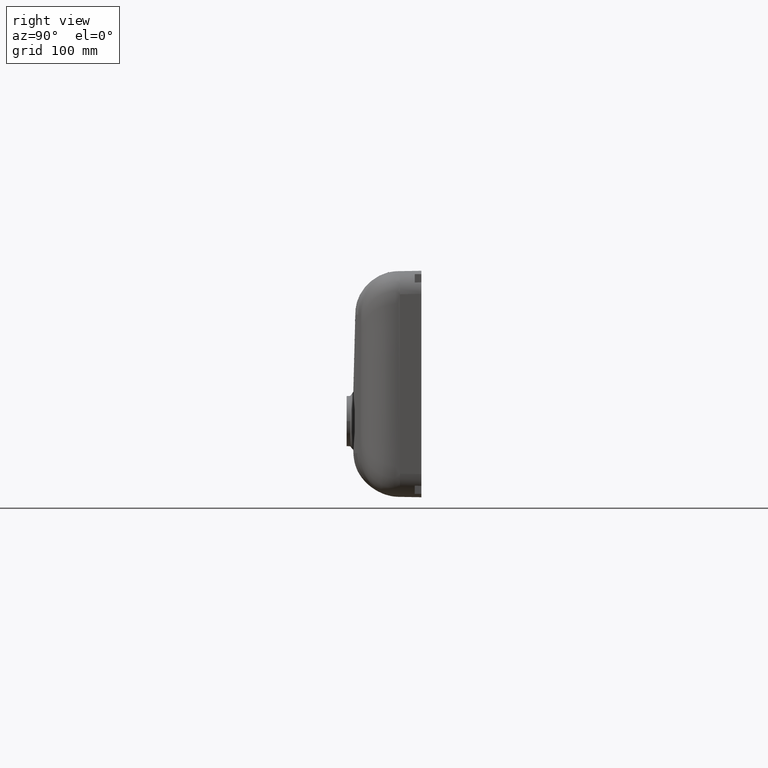
[diagram: clean part render]
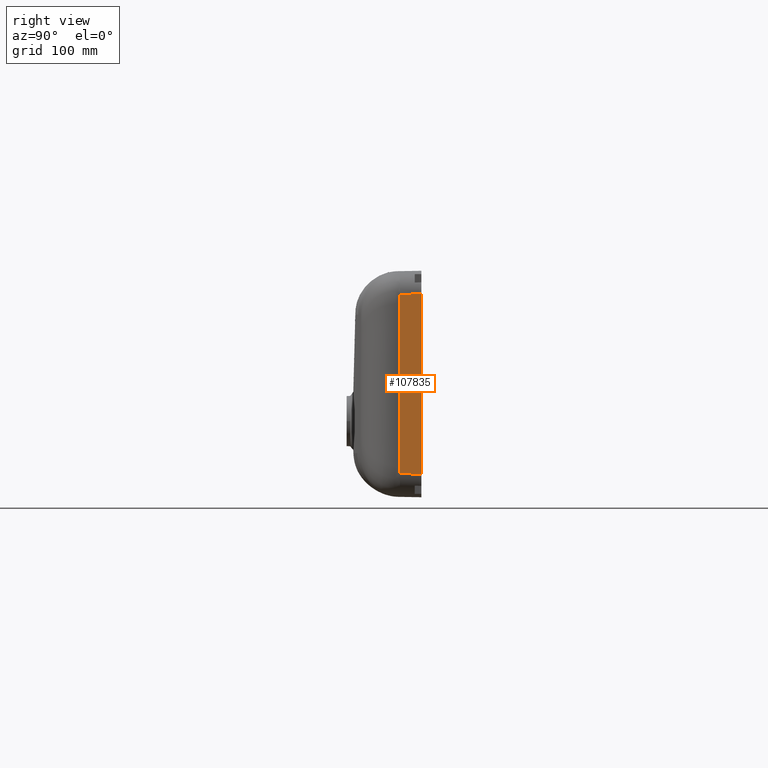
[diagram: same view with one face highlighted and labeled with its STEP entity id]
A machine part, right view. The second image highlights one B-rep face of the part: STEP entity #107835.
In plain terms, the highlighted planar face has unit normal (-0.9998, 0.0175, 0).
Its self-contained STEP definition (entity closure, byte-faithful):
#5448 = CARTESIAN_POINT ( 'NONE',  ( 1121.412078725274300, 80.73716222651927400, 157.7640204475701800 ) ) ;
#6230 = CARTESIAN_POINT ( 'NONE',  ( 1121.388565632289800, 80.73807119954472000, 190.0269091909690900 ) ) ;
#7011 = CARTESIAN_POINT ( 'NONE',  ( 1121.386718164625300, 80.73821625929862500, 230.4616566219234000 ) ) ;
#7800 = CARTESIAN_POINT ( 'NONE',  ( 1121.386764381054300, 80.73822223803829000, 265.3671292608127600 ) ) ;
#8594 = CARTESIAN_POINT ( 'NONE',  ( 1121.386756315348100, 80.73822460097979100, 325.0453660059885700 ) ) ;
#9375 = CARTESIAN_POINT ( 'NONE',  ( 1121.386890582942200, 80.73820402464315300, 360.4669816321612600 ) ) ;
#10158 = CARTESIAN_POINT ( 'NONE',  ( 1121.387137755654100, 80.73825935120463300, 395.6248617325097100 ) ) ;
#18772 = FACE_OUTER_BOUND ( 'NONE', #75873, .T. ) ;
#23118 = ORIENTED_EDGE ( 'NONE', *, *, #121031, .F. ) ;
#23738 = CARTESIAN_POINT ( 'NONE',  ( 1121.394222652712000, 80.73770692843602600, 163.4259520505943600 ) ) ;
#24515 = CARTESIAN_POINT ( 'NONE',  ( 1121.387002759732500, 80.73821075310735300, 195.9376239802663000 ) ) ;
#25291 = CARTESIAN_POINT ( 'NONE',  ( 1121.386630111464000, 80.73822729969245400, 236.7759424387272400 ) ) ;
#26079 = CARTESIAN_POINT ( 'NONE',  ( 1121.386766144521700, 80.73821161037624000, 275.9484267208014200 ) ) ;
#26872 = CARTESIAN_POINT ( 'NONE',  ( 1121.386763623771200, 80.73822562063674000, 326.6759253375058700 ) ) ;
#27653 = CARTESIAN_POINT ( 'NONE',  ( 1121.386981304610300, 80.73819708665000400, 366.3028589119812800 ) ) ;
#28435 = CARTESIAN_POINT ( 'NONE',  ( 1121.381340735097200, 80.73876413069980600, 401.2856158043961700 ) ) ;
#30274 = CARTESIAN_POINT ( 'NONE',  ( 1121.574498678530100, 91.49214260229383900, 150.4201706519064300 ) ) ;
#35734 = DIRECTION ( 'NONE',  ( -0.9998476951563912700, 0.01745240643728312000, 0.0000000000000000000 ) ) ;
#41976 = CARTESIAN_POINT ( 'NONE',  ( 1121.385064912444200, 80.73818891853009900, 166.7359287757715800 ) ) ;
#42761 = CARTESIAN_POINT ( 'NONE',  ( 1121.386428428525500, 80.73824253009800600, 205.5698241950958000 ) ) ;
#43544 = CARTESIAN_POINT ( 'NONE',  ( 1121.386665500806200, 80.73820881988371000, 242.1199159476229900 ) ) ;
#44042 = VECTOR ( 'NONE', #153985, 1000.000000000000000 ) ;
#44330 = CARTESIAN_POINT ( 'NONE',  ( 1121.386793015832600, 80.73820174954754200, 289.9883724484962500 ) ) ;
#45118 = CARTESIAN_POINT ( 'NONE',  ( 1121.386793078081800, 80.73822082742555000, 331.3315370545555500 ) ) ;
#45277 = CARTESIAN_POINT ( 'NONE',  ( 1121.949919725873800, 113.0000000000000000, 0.0000000000000000000 ) ) ;
#45896 = CARTESIAN_POINT ( 'NONE',  ( 1121.386721546064800, 80.73822721418342500, 372.1025400201373800 ) ) ;
#46673 = CARTESIAN_POINT ( 'NONE',  ( 1121.395675867761200, 80.73781552675423300, 411.5176311033802100 ) ) ;
#47670 = VERTEX_POINT ( 'NONE', #196051 ) ;
#50427 = VERTEX_POINT ( 'NONE', #129225 ) ;
#52429 = CARTESIAN_POINT ( 'NONE',  ( 1121.949919725874000, 113.0000000000000000, 421.9552503954783400 ) ) ;
#56088 = ORIENTED_EDGE ( 'NONE', *, *, #104351, .T. ) ;
#59442 = CARTESIAN_POINT ( 'NONE',  ( 1121.398863547583000, 80.73707506861514100, 151.2878662673524800 ) ) ;
#60216 = CARTESIAN_POINT ( 'NONE',  ( 1121.379377433992000, 80.73871069964643300, 170.8596934371576300 ) ) ;
#60351 = B_SPLINE_CURVE_WITH_KNOTS ( 'NONE', 3,
 ( #52429, #103232, #234195, #125390 ),
 .UNSPECIFIED., .F., .F.,
 ( 4, 4 ),
 ( 0.0000000000000000000, 1.006533961786602500 ),
 .UNSPECIFIED. ) ;
#61001 = CARTESIAN_POINT ( 'NONE',  ( 1121.386814280167100, 80.73820126166766900, 211.5258495857976600 ) ) ;
#61785 = CARTESIAN_POINT ( 'NONE',  ( 1121.386718416881400, 80.73819854920820700, 245.2718730600255700 ) ) ;
#62574 = CARTESIAN_POINT ( 'NONE',  ( 1121.386780622608100, 80.73821238788283900, 302.2959193913349100 ) ) ;
#63355 = CARTESIAN_POINT ( 'NONE',  ( 1121.386808966865100, 80.73821590306901900, 337.2363509996741300 ) ) ;
#64130 = CARTESIAN_POINT ( 'NONE',  ( 1121.386369514848600, 80.73826639857351500, 377.9623271033758600 ) ) ;
#64907 = CARTESIAN_POINT ( 'NONE',  ( 1121.410587110862000, 80.73726638829586500, 417.0007726097301800 ) ) ;
#75873 = EDGE_LOOP ( 'NONE', ( #56088, #23118, #178623, #161326 ) ) ;
#76093 = CARTESIAN_POINT ( 'NONE',  ( 1121.386788092024100, 80.73821030367572900, 150.6078843327878800 ) ) ;
#78445 = CARTESIAN_POINT ( 'NONE',  ( 1121.382064497095800, 80.73872425710941100, 176.5789020734226500 ) ) ;
#79227 = CARTESIAN_POINT ( 'NONE',  ( 1121.386988599546200, 80.73818663941020200, 216.6284091160813700 ) ) ;
#80016 = CARTESIAN_POINT ( 'NONE',  ( 1121.386741724013700, 80.73819965978314900, 246.9222258087547700 ) ) ;
#80805 = CARTESIAN_POINT ( 'NONE',  ( 1121.386766328336500, 80.73821617223261200, 308.7961720153045900 ) ) ;
#81587 = CARTESIAN_POINT ( 'NONE',  ( 1121.386794753004300, 80.73821521112064700, 342.9651383273863400 ) ) ;
#82367 = CARTESIAN_POINT ( 'NONE',  ( 1121.387103359120800, 80.73818720199585600, 383.8753098940453000 ) ) ;
#83143 = CARTESIAN_POINT ( 'NONE',  ( 1121.406472299683400, 80.73670216089220700, 419.3781577909505200 ) ) ;
#95911 = CARTESIAN_POINT ( 'NONE',  ( 1121.404850769019000, 80.73706386665016100, 152.0582134632410900 ) ) ;
#96687 = CARTESIAN_POINT ( 'NONE',  ( 1121.387740137198800, 80.73820157692205200, 182.2087948992032700 ) ) ;
#97471 = CARTESIAN_POINT ( 'NONE',  ( 1121.386896504837100, 80.73819610042646400, 223.6409126783650500 ) ) ;
#97732 = EDGE_CURVE ( 'NONE', #47670, #128056, #120273, .T. ) ;
#98254 = CARTESIAN_POINT ( 'NONE',  ( 1121.386789279348900, 80.73820977621525700, 251.7755032923230700 ) ) ;
#99042 = CARTESIAN_POINT ( 'NONE',  ( 1121.386744163827600, 80.73822023797632100, 319.6880739996606200 ) ) ;
#99825 = CARTESIAN_POINT ( 'NONE',  ( 1121.386758741345100, 80.73821435908594400, 350.2837326259515900 ) ) ;
#100607 = CARTESIAN_POINT ( 'NONE',  ( 1121.388740020125200, 80.73805407079889600, 389.8081469330030000 ) ) ;
#101384 = CARTESIAN_POINT ( 'NONE',  ( 1121.398084527674200, 80.73618355990657800, 420.6389196780771200 ) ) ;
#103232 = CARTESIAN_POINT ( 'NONE',  ( 1121.762209202202300, 102.2460713011469400, 421.7675398718064300 ) ) ;
#104351 = EDGE_CURVE ( 'NONE', #162033, #50427, #60351, .T. ) ;
#107835 = ADVANCED_FACE ( 'NONE', ( #18772 ), #144442, .F. ) ;
#107897 = CARTESIAN_POINT ( 'NONE',  ( 1122.265464864033700, 131.0775688579528500, 474.4315130306488300 ) ) ;
#114145 = CARTESIAN_POINT ( 'NONE',  ( 1121.413318651894300, 80.73707061602435400, 154.7303184410126300 ) ) ;
#114926 = CARTESIAN_POINT ( 'NONE',  ( 1121.388937282690200, 80.73804308469721000, 188.0506634579259900 ) ) ;
#115707 = CARTESIAN_POINT ( 'NONE',  ( 1121.386752226275100, 80.73821187671353500, 228.9355897743193400 ) ) ;
#116492 = CARTESIAN_POINT ( 'NONE',  ( 1121.386769121890700, 80.73822260915790100, 263.1682860679740700 ) ) ;
#117279 = CARTESIAN_POINT ( 'NONE',  ( 1121.386753516025200, 80.73822383461801200, 324.1895537681879800 ) ) ;
#118061 = CARTESIAN_POINT ( 'NONE',  ( 1121.386834470315500, 80.73820814484173500, 358.4850118202124900 ) ) ;
#118851 = CARTESIAN_POINT ( 'NONE',  ( 1121.388201976624300, 80.73813923899703600, 393.7042107705284500 ) ) ;
#119632 = CARTESIAN_POINT ( 'NONE',  ( 1121.386788097087700, 80.73821059376116700, 421.3921171574152100 ) ) ;
#120273 = B_SPLINE_CURVE_WITH_KNOTS ( 'NONE', 3,
 ( #220824, #211246, #30274, #157239 ),
 .UNSPECIFIED., .F., .F.,
 ( 4, 4 ),
 ( 0.0000000000000000000, 1.006533961786604000 ),
 .UNSPECIFIED. ) ;
#121031 = EDGE_CURVE ( 'NONE', #128056, #50427, #213173, .T. ) ;
#122199 = CARTESIAN_POINT ( 'NONE',  ( 1121.386788092024100, 80.73821030367572900, 150.6078843327878800 ) ) ;
#125390 = CARTESIAN_POINT ( 'NONE',  ( 1121.386788097087700, 80.73821059376116700, 421.3921171574152100 ) ) ;
#128056 = VERTEX_POINT ( 'NONE', #122199 ) ;
#129225 = CARTESIAN_POINT ( 'NONE',  ( 1121.386788097087700, 80.73821059376116700, 421.3921171574152100 ) ) ;
#132417 = CARTESIAN_POINT ( 'NONE',  ( 1121.404926553231900, 80.73731516135288200, 160.0343045903307200 ) ) ;
#133205 = CARTESIAN_POINT ( 'NONE',  ( 1121.387590399581500, 80.73815537634426700, 193.9713436420443300 ) ) ;
#133986 = CARTESIAN_POINT ( 'NONE',  ( 1121.386643572884400, 80.73822592478237000, 234.6004973342205300 ) ) ;
#134774 = CARTESIAN_POINT ( 'NONE',  ( 1121.386761724825400, 80.73821892491254500, 269.6541180675075100 ) ) ;
#135570 = CARTESIAN_POINT ( 'NONE',  ( 1121.386757985114600, 80.73822497925671400, 325.4601113496023000 ) ) ;
#136353 = CARTESIAN_POINT ( 'NONE',  ( 1121.386964460050200, 80.73819825235465000, 364.3748565097234900 ) ) ;
#137141 = CARTESIAN_POINT ( 'NONE',  ( 1121.386281422983800, 80.73835203326088100, 396.5742672888137600 ) ) ;
#143205 = CARTESIAN_POINT ( 'NONE',  ( 1121.949919725874000, 113.0000000000000000, 421.9552503954783400 ) ) ;
#144442 = PLANE ( 'NONE',  #222603 ) ;
#150679 = CARTESIAN_POINT ( 'NONE',  ( 1121.390653964123900, 80.73786352003645600, 164.5537896259456000 ) ) ;
#151466 = CARTESIAN_POINT ( 'NONE',  ( 1121.386120561569400, 80.73828776051172400, 201.7604770537098800 ) ) ;
#152247 = CARTESIAN_POINT ( 'NONE',  ( 1121.386641075846200, 80.73821877447372200, 240.5356479125540800 ) ) ;
#153039 = CARTESIAN_POINT ( 'NONE',  ( 1121.386782847732800, 80.73820365932284900, 281.9681292576229300 ) ) ;
#153831 = CARTESIAN_POINT ( 'NONE',  ( 1121.386777360266000, 80.73822520525445200, 328.9976493083486300 ) ) ;
#153985 = DIRECTION ( 'NONE',  ( 0.0000000000000000000, 0.0000000000000000000, -1.000000000000000000 ) ) ;
#154610 = CARTESIAN_POINT ( 'NONE',  ( 1121.386877054287400, 80.73820962355486600, 370.1644337724985100 ) ) ;
#155396 = CARTESIAN_POINT ( 'NONE',  ( 1121.376203153631200, 80.73855002886088500, 404.9709223527651700 ) ) ;
#157239 = CARTESIAN_POINT ( 'NONE',  ( 1121.386788092024100, 80.73821030367572900, 150.6078843327878800 ) ) ;
#161326 = ORIENTED_EDGE ( 'NONE', *, *, #230615, .F. ) ;
#162033 = VERTEX_POINT ( 'NONE', #143205 ) ;
#162706 = DIRECTION ( 'NONE',  ( 0.0000000000000000000, 0.0000000000000000000, -1.000000000000000000 ) ) ;
#168936 = CARTESIAN_POINT ( 'NONE',  ( 1121.383129317675400, 80.73834525964564100, 167.7882467440665000 ) ) ;
#169726 = CARTESIAN_POINT ( 'NONE',  ( 1121.386752691910500, 80.73820715814466100, 210.5249554606069500 ) ) ;
#170517 = CARTESIAN_POINT ( 'NONE',  ( 1121.386704847108400, 80.73820020432268100, 244.4852659762232500 ) ) ;
#171301 = CARTESIAN_POINT ( 'NONE',  ( 1121.386791527121400, 80.73820677897546700, 295.9989783342110200 ) ) ;
#172093 = CARTESIAN_POINT ( 'NONE',  ( 1121.386806261372600, 80.73821688360908400, 335.0619080319431200 ) ) ;
#172874 = CARTESIAN_POINT ( 'NONE',  ( 1121.386459733592600, 80.73825672004896600, 376.0024519982619000 ) ) ;
#173654 = CARTESIAN_POINT ( 'NONE',  ( 1121.405469014608100, 80.73767127149058400, 413.8355840999118400 ) ) ;
#178623 = ORIENTED_EDGE ( 'NONE', *, *, #97732, .F. ) ;
#187215 = CARTESIAN_POINT ( 'NONE',  ( 1121.379573325739100, 80.73881443865589300, 172.7924472477535600 ) ) ;
#188000 = CARTESIAN_POINT ( 'NONE',  ( 1121.386902784230000, 80.73819356706746900, 213.5532056924964200 ) ) ;
#188785 = CARTESIAN_POINT ( 'NONE',  ( 1121.386736225240800, 80.73819895043126800, 246.5030436052821900 ) ) ;
#189582 = CARTESIAN_POINT ( 'NONE',  ( 1121.386771733309200, 80.73821523075038400, 306.5900883431752400 ) ) ;
#190366 = CARTESIAN_POINT ( 'NONE',  ( 1121.386799963313700, 80.73821530399331400, 341.4176902394307300 ) ) ;
#191145 = CARTESIAN_POINT ( 'NONE',  ( 1121.386637565855200, 80.73823788396714500, 381.8977528625231300 ) ) ;
#191928 = CARTESIAN_POINT ( 'NONE',  ( 1121.410706392365700, 80.73709400493032700, 418.0040276171477000 ) ) ;
#194603 = LINE ( 'NONE', #45277, #44042 ) ;
#196051 = CARTESIAN_POINT ( 'NONE',  ( 1121.949919725874000, 113.0000000000000000, 150.0447496045627000 ) ) ;
#205475 = CARTESIAN_POINT ( 'NONE',  ( 1121.384361765555700, 80.73853770008410900, 178.4326861833670500 ) ) ;
#206261 = CARTESIAN_POINT ( 'NONE',  ( 1121.386965870955700, 80.73818910548432400, 219.7074785285026300 ) ) ;
#207050 = CARTESIAN_POINT ( 'NONE',  ( 1121.386751387687600, 80.73820137369074200, 247.7855269256853000 ) ) ;
#207840 = CARTESIAN_POINT ( 'NONE',  ( 1121.386751694492900, 80.73821873393339400, 315.3710230792769400 ) ) ;
#208629 = CARTESIAN_POINT ( 'NONE',  ( 1121.386778897432100, 80.73821492205122800, 346.4409618385990900 ) ) ;
#209412 = CARTESIAN_POINT ( 'NONE',  ( 1121.388209327262100, 80.73809141649748300, 387.8320873590343500 ) ) ;
#210190 = CARTESIAN_POINT ( 'NONE',  ( 1121.404325210126000, 80.73654917204049800, 419.8144939954693200 ) ) ;
#211246 = CARTESIAN_POINT ( 'NONE',  ( 1121.762209202202300, 102.2460713011469300, 150.2324601282345500 ) ) ;
#213173 = B_SPLINE_CURVE_WITH_KNOTS ( 'NONE', 3,
 ( #76093, #59442, #95911, #222950, #114145, #5448, #132417, #23738, #150679, #41976, #168936, #60216, #187215, #78445, #205475, #96687, #223730, #114926, #6230, #133205, #24515, #151466, #42761, #169726, #61001, #188000, #79227, #206261, #97471, #224513, #115707, #7011, #133986, #25291, #152247, #43544, #170517, #61785, #188785, #80016, #207050, #98254, #225297, #116492, #7800, #134774, #26079, #153039, #44330, #171301, #62574, #189582, #80805, #207840, #99042, #226083, #117279, #8594, #135570, #26872, #153831, #45118, #172093, #63355, #190366, #81587, #208629, #99825, #226869, #118061, #9375, #136353, #27653, #154610, #45896, #172874, #64130, #191145, #82367, #209412, #100607, #227656, #118851, #10158, #137141, #28435, #155396, #46673, #173654, #64907, #191928, #83143, #210190, #101384, #228433, #119632 ),
 .UNSPECIFIED., .F., .F.,
 ( 4, 2, 2, 2, 2, 2, 2, 2, 2, 2, 2, 2, 2, 1, 2, 2, 2, 2, 2, 2, 2, 1, 2, 2, 1, 2, 1, 2, 2, 2, 2, 2, 1, 2, 2, 2, 1, 2, 2, 2, 2, 2, 2, 2, 2, 2, 2, 2, 2, 2, 4 ),
 ( 0.001027194976193892800, 0.008824244329143504300, 0.01662129368209311300, 0.03221539238799212000, 0.04001244174094172700, 0.04780949109389131400, 0.06340358979979031400, 0.07899768850568930600, 0.09459178721158827100, 0.1101858859174872600, 0.1257799846233862400, 0.1569681820351844500, 0.1647652313881340400, 0.1725622807410836500, 0.1881563794469828500, 0.2037504781528821100, 0.2193445768587813100, 0.2505327742705797400, 0.2817209716823781400, 0.2973150703882774200, 0.3051121197412269800, 0.3129091690941766500, 0.3752855639177734000, 0.4064737613295714700, 0.4376619587413694300, 0.5000383535649662900, 0.5624147483885630900, 0.5936029458003616600, 0.6247911432121601200, 0.6871675380357577000, 0.6949645873887065900, 0.7027616367416553700, 0.7183557354475531600, 0.7495439328593496200, 0.7807321302711463000, 0.7963262289770441900, 0.8119203276829423100, 0.8275144263888402100, 0.8431085250947382100, 0.8587026238006363300, 0.8742967225065342300, 0.8898908212124322400, 0.9054849199183302400, 0.9210790186242282500, 0.9288760679771772600, 0.9366731173301262600, 0.9678613147419226100, 0.9834554134478208400, 0.9912524628007698400, 0.9951509874772442900, 0.9990495121537185100 ),
 .UNSPECIFIED. ) ;
#220824 = CARTESIAN_POINT ( 'NONE',  ( 1121.949919725874000, 113.0000000000000000, 150.0447496045627000 ) ) ;
#222603 = AXIS2_PLACEMENT_3D ( 'NONE', #107897, #35734, #162706 ) ;
#222950 = CARTESIAN_POINT ( 'NONE',  ( 1121.412158311083400, 80.73706096716368600, 153.7810190247262500 ) ) ;
#223730 = CARTESIAN_POINT ( 'NONE',  ( 1121.388555266334400, 80.73810022080640200, 184.1409885730616900 ) ) ;
#224513 = CARTESIAN_POINT ( 'NONE',  ( 1121.386842293804200, 80.73820161862474300, 225.5216351263397900 ) ) ;
#225297 = CARTESIAN_POINT ( 'NONE',  ( 1121.386782042272200, 80.73821910256418700, 256.6157645878445800 ) ) ;
#226083 = CARTESIAN_POINT ( 'NONE',  ( 1121.386752372395200, 80.73822346124947600, 323.7493484662733200 ) ) ;
#226869 = CARTESIAN_POINT ( 'NONE',  ( 1121.386775834485200, 80.73821210764391800, 354.4207439694982900 ) ) ;
#227656 = CARTESIAN_POINT ( 'NONE',  ( 1121.388469811090500, 80.73810465884169200, 392.7348635575177100 ) ) ;
#228433 = CARTESIAN_POINT ( 'NONE',  ( 1121.394012802845100, 80.73597085856185600, 421.0266649573917400 ) ) ;
#230615 = EDGE_CURVE ( 'NONE', #162033, #47670, #194603, .T. ) ;
#234195 = CARTESIAN_POINT ( 'NONE',  ( 1121.574498678530100, 91.49214260229385300, 421.5798293481344700 ) ) ;